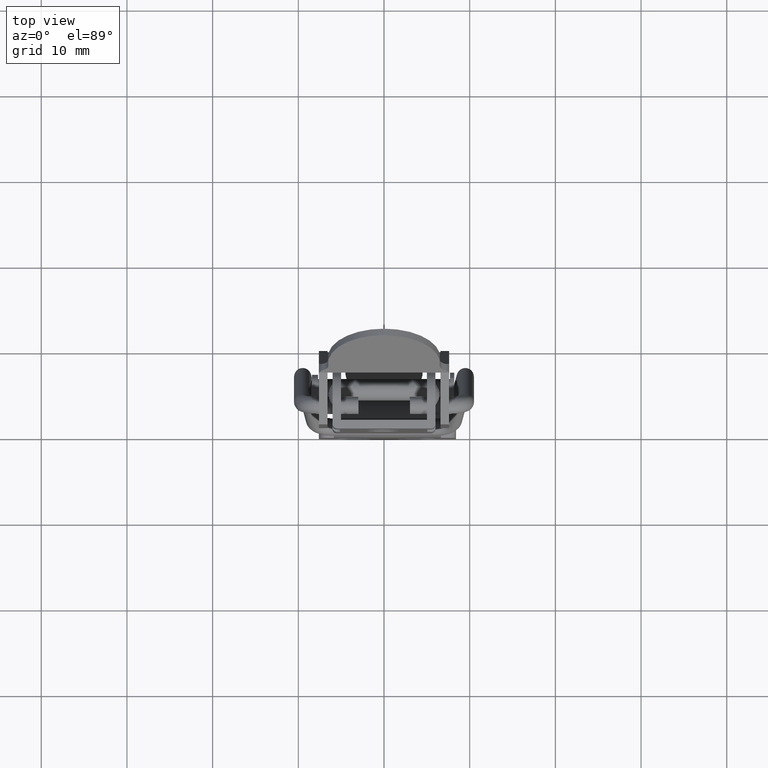
[diagram: clean part render]
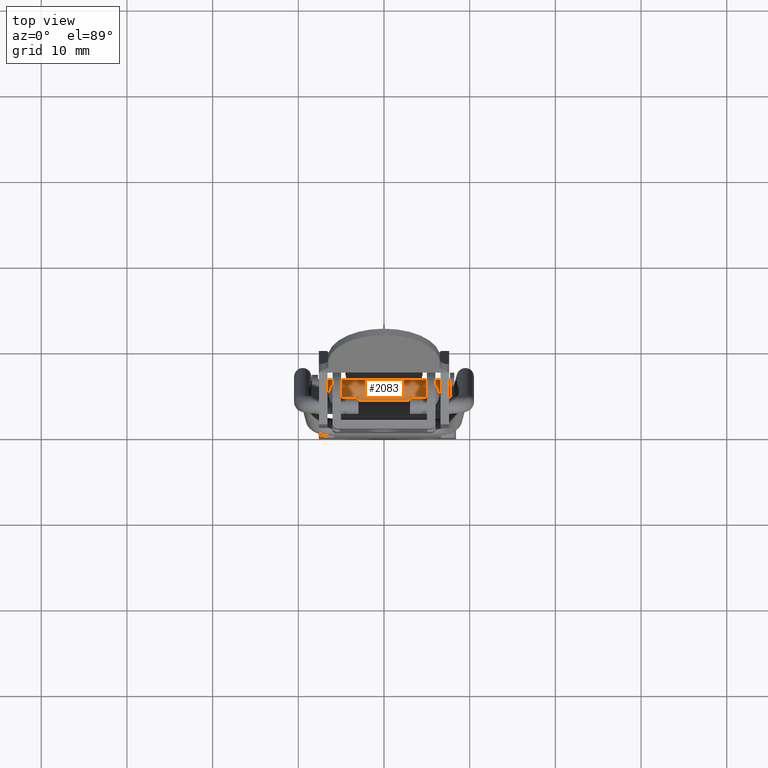
[diagram: same view with one face highlighted and labeled with its STEP entity id]
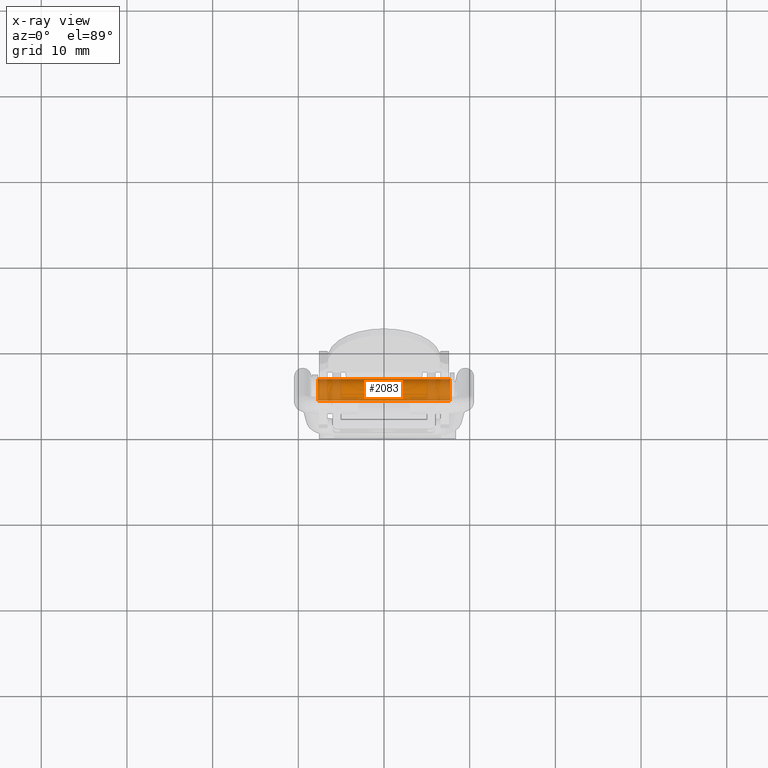
[diagram: x-ray of the same camera — body ghosted, the highlighted face saturated]
A machine part, top view. The second image highlights one B-rep face of the part: STEP entity #2083.
The next image is the same camera in x-ray: the body ghosted, the highlighted face saturated — about 34% of this face is hidden behind the body in this view.
In plain terms, the highlighted cylindrical surface (bore or boss wall) has radius 1.25 mm, axis along (-1, -0, 0).
Its self-contained STEP definition (entity closure, byte-faithful):
#483=FACE_BOUND('',#761,.T.);
#588=FACE_OUTER_BOUND('',#760,.T.);
#760=EDGE_LOOP('',(#1809));
#761=EDGE_LOOP('',(#1810));
#879=CIRCLE('',#2301,1.24999999999998);
#882=CIRCLE('',#2307,1.24999999999998);
#1057=VERTEX_POINT('',#3526);
#1060=VERTEX_POINT('',#3535);
#1314=EDGE_CURVE('',#1057,#1057,#879,.T.);
#1317=EDGE_CURVE('',#1060,#1060,#882,.T.);
#1809=ORIENTED_EDGE('',*,*,#1314,.F.);
#1810=ORIENTED_EDGE('',*,*,#1317,.F.);
#1974=CYLINDRICAL_SURFACE('',#2311,1.24999999999998);
#2083=ADVANCED_FACE('',(#588,#483),#1974,.T.);
#2301=AXIS2_PLACEMENT_3D('',#3527,#2858,#2859);
#2307=AXIS2_PLACEMENT_3D('',#3536,#2870,#2871);
#2311=AXIS2_PLACEMENT_3D('',#3541,#2878,#2879);
#2858=DIRECTION('center_axis',(0.,0.,-1.));
#2859=DIRECTION('ref_axis',(-1.,0.,0.));
#2870=DIRECTION('center_axis',(0.,0.,1.));
#2871=DIRECTION('ref_axis',(-1.,0.,0.));
#2878=DIRECTION('center_axis',(0.,0.,1.));
#2879=DIRECTION('ref_axis',(-1.,0.,0.));
#3526=CARTESIAN_POINT('',(-3.65000000000001,-3.00000000000001,-7.7));
#3527=CARTESIAN_POINT('Origin',(-4.9,-3.00000000000001,-7.7));
#3535=CARTESIAN_POINT('',(-3.65000000000001,-3.00000000000001,7.7));
#3536=CARTESIAN_POINT('Origin',(-4.9,-3.00000000000001,7.7));
#3541=CARTESIAN_POINT('Origin',(-4.9,-3.00000000000001,0.));